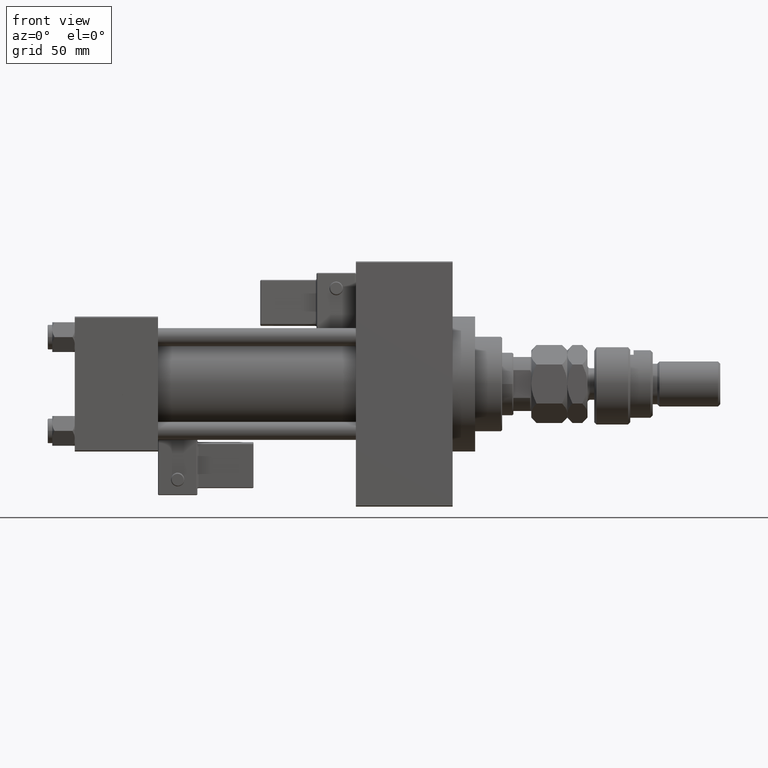
[diagram: clean part render]
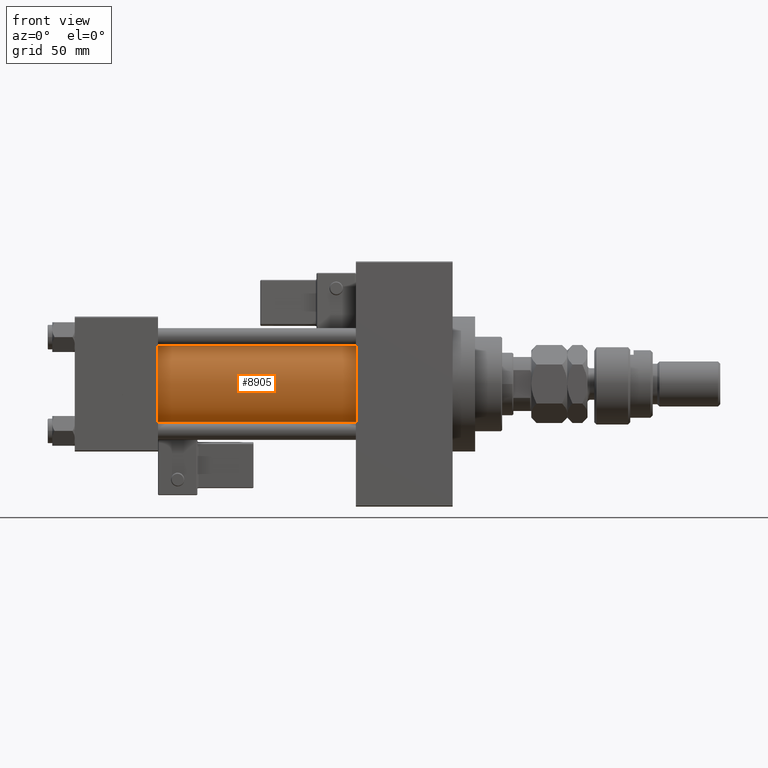
[diagram: same view with one face highlighted and labeled with its STEP entity id]
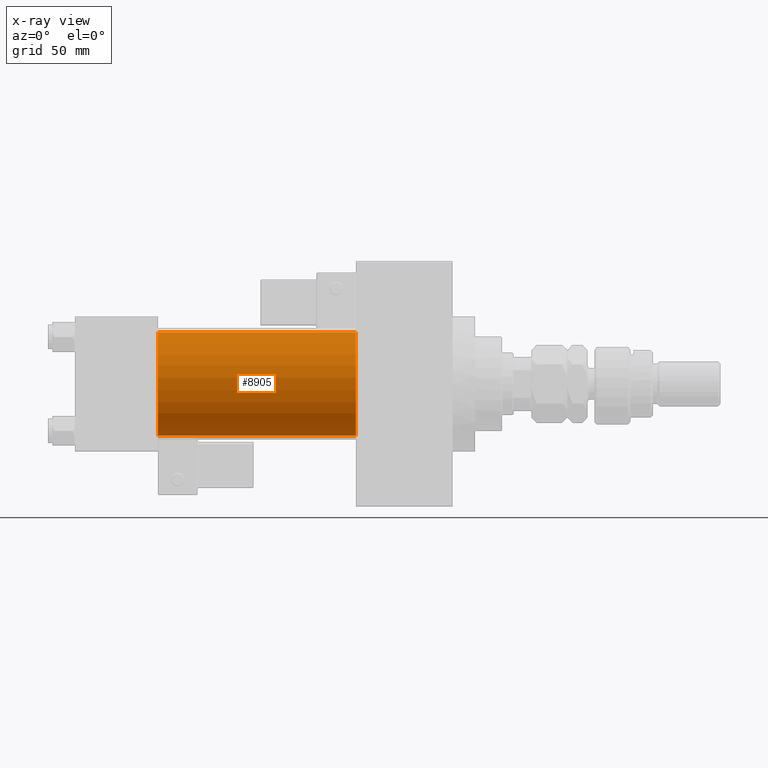
[diagram: x-ray of the same camera — body ghosted, the highlighted face saturated]
A machine part, front view. The second image highlights one B-rep face of the part: STEP entity #8905.
The next image is the same camera in x-ray: the body ghosted, the highlighted face saturated — about 0% of this face is hidden behind the body in this view.
In plain terms, the highlighted cylindrical surface (partial cylindrical patch) has radius 23 mm, axis along (-1, -0, -0).
Its self-contained STEP definition (entity closure, byte-faithful):
#2357 = CARTESIAN_POINT ( 'NONE',  ( 37.00000000000000711, 2.146024240737016609E-16, -23.00000000000000000 ) ) ;
#3331 = CARTESIAN_POINT ( 'NONE',  ( 125.0000000000000000, -2.602085213965210642E-15, 0.000000000000000000 ) ) ;
#4961 = AXIS2_PLACEMENT_3D ( 'NONE', #12689, #50269, #17370 ) ;
#8282 = DIRECTION ( 'NONE',  ( 1.000000000000000000, 0.000000000000000000, 0.000000000000000000 ) ) ;
#8905 = ADVANCED_FACE ( 'NONE', ( #49192 ), #11331, .T. ) ;
#10302 = CARTESIAN_POINT ( 'NONE',  ( 125.0000000000000000, 2.146024240737016609E-16, -23.00000000000000000 ) ) ;
#11331 = CYLINDRICAL_SURFACE ( 'NONE', #46416, 23.00000000000000000 ) ;
#12294 = CARTESIAN_POINT ( 'NONE',  ( 125.0000000000000000, -2.602085213965210642E-15, 23.00000000000000000 ) ) ;
#12689 = CARTESIAN_POINT ( 'NONE',  ( 37.00000000000000711, -2.602085213965210642E-15, 0.000000000000000000 ) ) ;
#14605 = CIRCLE ( 'NONE', #45502, 23.00000000000000000 ) ;
#16331 = CARTESIAN_POINT ( 'NONE',  ( 37.00000000000000711, -2.602085213965210642E-15, 23.00000000000000000 ) ) ;
#16549 = CARTESIAN_POINT ( 'NONE',  ( 125.0000000000000000, -2.602085213965210642E-15, 0.000000000000000000 ) ) ;
#17240 = ORIENTED_EDGE ( 'NONE', *, *, #35113, .T. ) ;
#17370 = DIRECTION ( 'NONE',  ( 0.000000000000000000, 0.000000000000000000, 1.000000000000000000 ) ) ;
#22203 = VERTEX_POINT ( 'NONE', #38646 ) ;
#22607 = VERTEX_POINT ( 'NONE', #2357 ) ;
#23289 = EDGE_CURVE ( 'NONE', #46131, #22203, #14605, .T. ) ;
#24735 = DIRECTION ( 'NONE',  ( -1.000000000000000000, -0.000000000000000000, -0.000000000000000000 ) ) ;
#24865 = DIRECTION ( 'NONE',  ( 0.000000000000000000, 0.000000000000000000, -1.000000000000000000 ) ) ;
#27419 = VECTOR ( 'NONE', #24735, 1000.000000000000000 ) ;
#29138 = ORIENTED_EDGE ( 'NONE', *, *, #47771, .T. ) ;
#31503 = CARTESIAN_POINT ( 'NONE',  ( 125.0000000000000000, -2.602085213965210642E-15, 23.00000000000000000 ) ) ;
#32342 = CIRCLE ( 'NONE', #4961, 23.00000000000000000 ) ;
#34915 = ORIENTED_EDGE ( 'NONE', *, *, #50998, .F. ) ;
#35113 = EDGE_CURVE ( 'NONE', #46131, #53858, #41592, .T. ) ;
#38646 = CARTESIAN_POINT ( 'NONE',  ( 125.0000000000000000, 2.146024240737016609E-16, -23.00000000000000000 ) ) ;
#40386 = VECTOR ( 'NONE', #40687, 1000.000000000000000 ) ;
#40687 = DIRECTION ( 'NONE',  ( -1.000000000000000000, -0.000000000000000000, -0.000000000000000000 ) ) ;
#40755 = EDGE_LOOP ( 'NONE', ( #34915, #53753, #17240, #29138 ) ) ;
#41592 = LINE ( 'NONE', #12294, #27419 ) ;
#45502 = AXIS2_PLACEMENT_3D ( 'NONE', #3331, #8282, #24865 ) ;
#46131 = VERTEX_POINT ( 'NONE', #31503 ) ;
#46407 = DIRECTION ( 'NONE',  ( 0.000000000000000000, 0.000000000000000000, 1.000000000000000000 ) ) ;
#46416 = AXIS2_PLACEMENT_3D ( 'NONE', #16549, #49725, #46407 ) ;
#47771 = EDGE_CURVE ( 'NONE', #53858, #22607, #32342, .T. ) ;
#49192 = FACE_OUTER_BOUND ( 'NONE', #40755, .T. ) ;
#49725 = DIRECTION ( 'NONE',  ( -1.000000000000000000, -0.000000000000000000, -0.000000000000000000 ) ) ;
#50269 = DIRECTION ( 'NONE',  ( 1.000000000000000000, -0.000000000000000000, 0.000000000000000000 ) ) ;
#50998 = EDGE_CURVE ( 'NONE', #22203, #22607, #53376, .T. ) ;
#53376 = LINE ( 'NONE', #10302, #40386 ) ;
#53753 = ORIENTED_EDGE ( 'NONE', *, *, #23289, .F. ) ;
#53858 = VERTEX_POINT ( 'NONE', #16331 ) ;